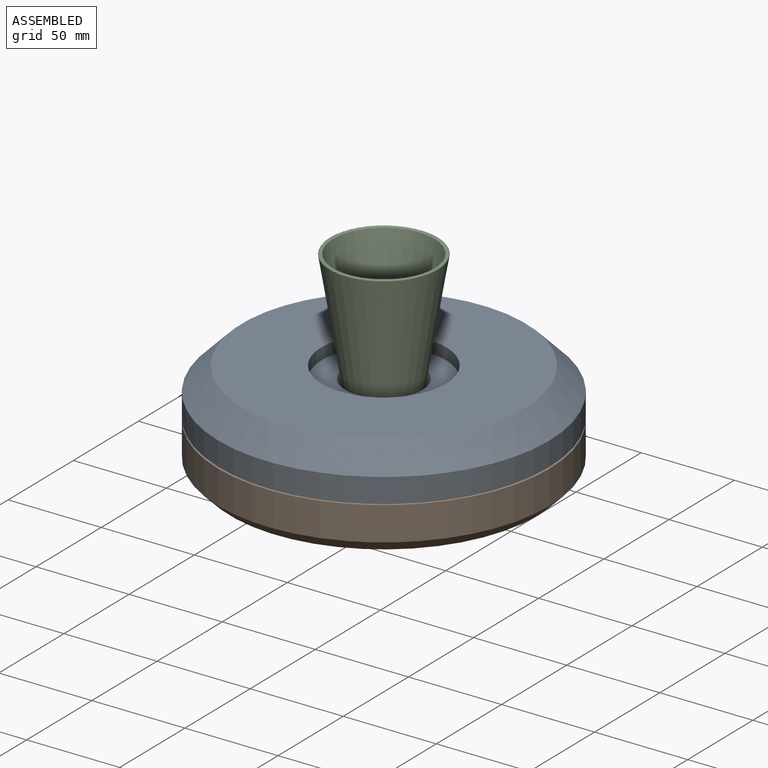
[diagram: assembled view]
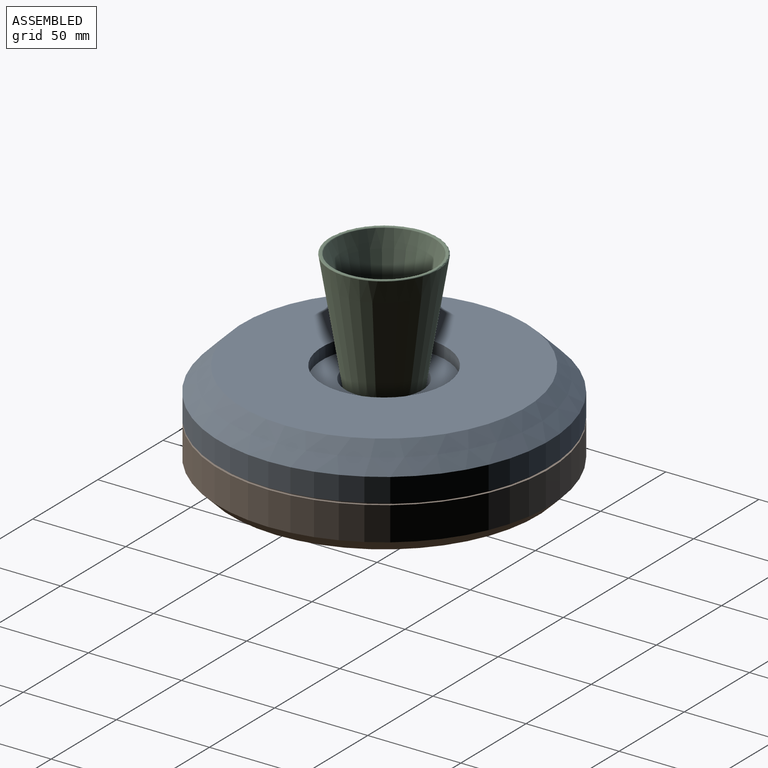
[diagram: assembled view, second angle]
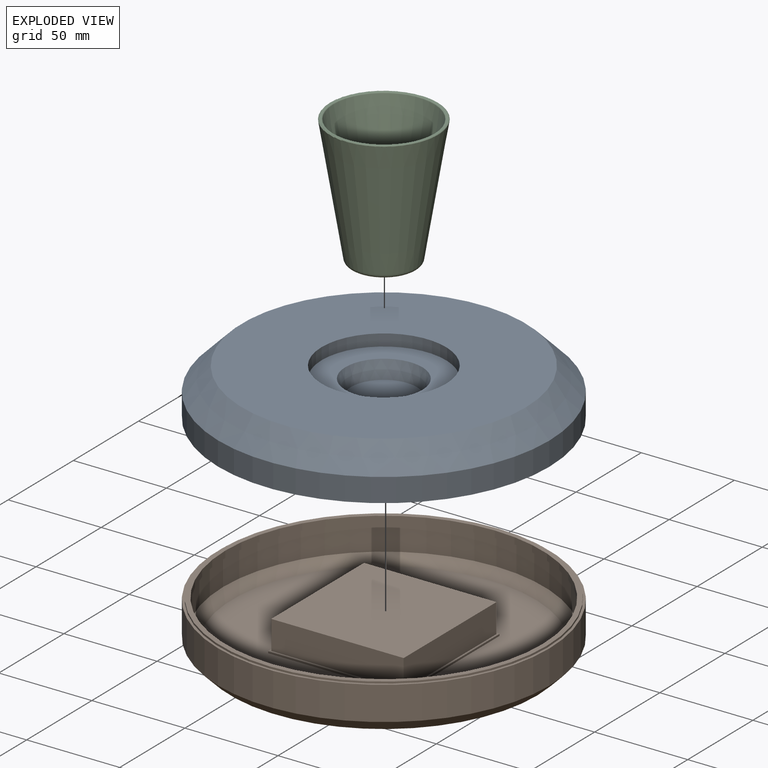
[diagram: exploded view]
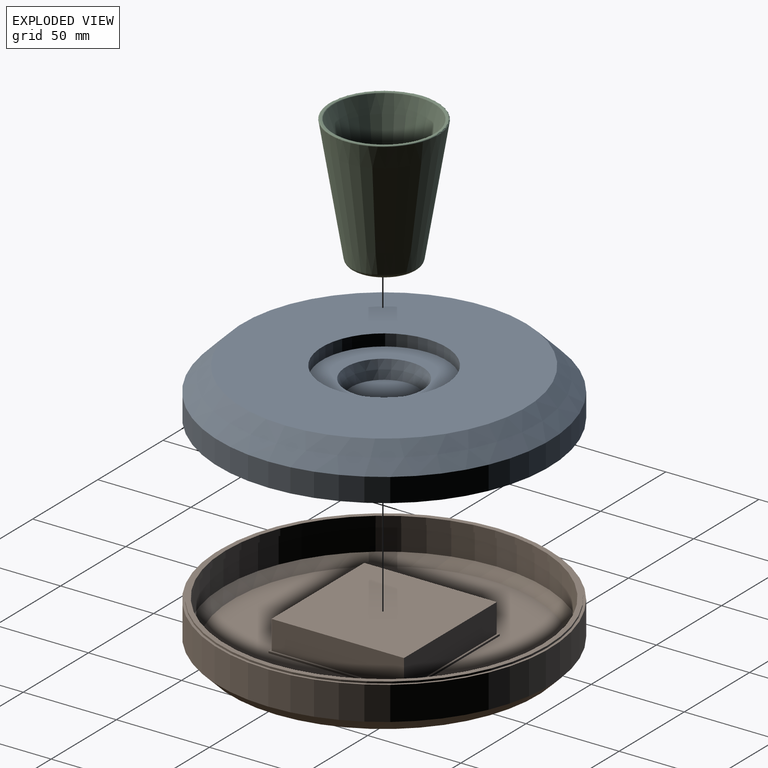
[diagram: exploded view, second angle]
ASSEMBLY  parts=3 mates=2
PART A: 15 faces, bbox 177.8x177.8x25.4 mm
  f0: cylinder r=88.9mm len=177.8mm, axis (0,0,-1), area 7093.9mm2, adj f2,f3
  f1: plane 152.4x152.4mm, normal (0,0,1), area 14736.6mm2, adj f3,f4
  f2: plane 177.8x177.8mm, normal (0,0,-1), area 1398.5mm2, adj f0,f8
  f3: cone r=76.2mm half-angle=45deg, axis (0,0,-1), area 9315.7mm2, adj f0,f1
  f4: cylinder r=33.4mm len=66.8mm, axis (0,0,1), area 1332.6mm2, adj f1,f5
  f5: plane 66.8x66.8mm, normal (0,0,1), area 2162.5mm2, adj f4,f7
  f6: plane 35.56x35.56mm, normal (0,0,1), area 993.4mm2, adj f7
  f7: cone r=17.78mm half-angle=18deg, axis (0,0,1), area 1129.2mm2, adj f5,f6
  f8: cylinder r=86.36mm len=172.72mm, axis (0,0,-1), area 6320.3mm2, adj f2,f10
  f9: plane 150.3x150.3mm, normal (0,0,-1), area 13683.1mm2, adj f10,f11
  f10: cone r=74.4mm half-angle=45deg, axis (0,0,-1), area 8045.4mm2, adj f8,f9
  f11: cylinder r=35.94mm len=71.88mm, axis (0,0,1), area 1434mm2, adj f9,f12
  f12: plane 71.88x71.88mm, normal (0,0,-1), area 2465.5mm2, adj f11,f14
  f13: plane 39.26x39.26mm, normal (0,0,-1), area 1210.3mm2, adj f14
  f14: cone r=20.2mm half-angle=18deg, axis (0,0,1), area 1237.6mm2, adj f12,f13
PART B: 31 faces, bbox 177.8x177.8x25.4 mm
  f0: cylinder r=88.9mm len=177.8mm, axis (0,0,-1), area 10082.3mm2, adj f2,f14
  f1: plane 165.1x165.1mm, normal (0,0,-1), area 16784.4mm2, adj f2,f3,f4,f5,f6
  f2: cone r=88.9mm half-angle=45deg, axis (0,0,1), area 4837mm2, adj f0,f1
  f3: plane 68x1mm, normal (0,1,0), area 68mm2, adj f1,f4,f6,f7
  f4: plane 68x1mm, normal (-1,0,0), area 68mm2, adj f1,f3,f5,f7
  f5: plane 68x1mm, normal (0,-1,0), area 68mm2, adj f1,f4,f6,f7
  f6: plane 68x1mm, normal (1,0,0), area 68mm2, adj f1,f3,f5,f7
  f7: plane 68x68mm, normal (0,0,-1), area 268mm2, adj f3,f4,f5,f6,f8,f9,f10,f11
  f8: plane 66x15.51mm, normal (0,-1,0), area 1023.7mm2, adj f7,f9,f11,f12
  f9: plane 66x15.51mm, normal (1,0,0), area 1023.7mm2, adj f7,f8,f10,f12
  f10: plane 66x15.51mm, normal (0,1,0), area 1023.7mm2, adj f7,f9,f11,f12
  f11: plane 66x15.51mm, normal (-1,0,0), area 1023.7mm2, adj f7,f8,f10,f12
  f12: plane 66x66mm, normal (0,0,-1), area 4356mm2, adj f8,f9,f10,f11
  f13: cylinder r=87.63mm len=175.26mm, axis (0,0,1), area 550.6mm2, adj f14,f15
  f14: plane 177.8x177.8mm, normal (0,0,1), area 704.3mm2, adj f0,f13
  f15: plane 175.26x175.26mm, normal (0,0,1), area 1378.2mm2, adj f13,f29
  f16: cylinder r=86.36mm len=172.72mm, axis (0,0,-1), area 7845.1mm2, adj f18,f30
  f17: plane 163x163mm, normal (0,0,1), area 15525.5mm2, adj f18,f19,f20,f21,f22
  f18: cone r=87.1mm half-angle=45deg, axis (0,0,1), area 3626mm2, adj f16,f17
  f19: plane 73.08x1mm, normal (0,-1,0), area 73.1mm2, adj f17,f20,f22,f23
  f20: plane 73.08x1mm, normal (1,0,0), area 73.1mm2, adj f17,f19,f21,f23
  f21: plane 73.08x1mm, normal (0,1,0), area 73.1mm2, adj f17,f20,f22,f23
  f22: plane 73.08x1mm, normal (-1,0,0), area 73.1mm2, adj f17,f19,f21,f23
  f23: plane 73.08x73.08mm, normal (0,0,1), area 288.3mm2, adj f19,f20,f21,f22,f24,f25,f26,f27
  f24: plane 71.08x15.51mm, normal (0,1,0), area 1102.5mm2, adj f23,f25,f27,f28
  f25: plane 71.08x15.51mm, normal (-1,0,0), area 1102.5mm2, adj f23,f24,f26,f28
  f26: plane 71.08x15.51mm, normal (0,-1,0), area 1102.5mm2, adj f23,f25,f27,f28
  f27: plane 71.08x15.51mm, normal (1,0,0), area 1102.5mm2, adj f23,f24,f26,f28
  f28: plane 71.08x71.08mm, normal (0,0,1), area 5052.4mm2, adj f24,f25,f26,f27
  f29: cylinder r=85.09mm len=170.18mm, axis (0,0,1), area 1892.6mm2, adj f15,f30
  f30: plane 172.72x172.72mm, normal (0,0,-1), area 684.1mm2, adj f16,f29
PART C: 9 faces, bbox 62.7x62.7x69.9 mm
  f0: cone r=28.98mm half-angle=9.4deg, axis (0,0,1), area 10021.3mm2, adj f1,f8
  f1: torus R=15.35mm, axis (0,0,-1), area 378.4mm2, adj f0,f2
  f2: plane 30.69x30.69mm, normal (0,0,-1), area 739.8mm2, adj f1
  f3: plane 13.66x13.66mm, normal (0,0,1), area 146.6mm2, adj f4
  f4: torus R=6.83mm, axis (0,0,-1), area 716.8mm2, adj f3,f5
  f5: cone r=14.24mm half-angle=13.4deg, axis (0,0,1), area 7173.7mm2, adj f4,f6
  f6: torus R=27.51mm, axis (0,0,-1), area 102.6mm2, adj f5,f7
  f7: cone r=27.44mm half-angle=82.2deg, axis (0,0,1), area 171.8mm2, adj f6,f8
  f8: torus R=28.48mm, axis (0,0,-1), area 169.3mm2, adj f0,f7
PLACE A t=(79.96,-40.22,17.2)mm
PLACE B t=(264.11,-40.22,-8.2)mm
PLACE C t=(79.96,-40.22,27.36)mm
MATE fastened B.f13 <-> A.f0  axis (0,0,1) through (79.96,-40.22,17.2)mm
MATE fastened C.f0 <-> A.f7  axis (0,0,-1) through (79.96,-40.22,27.36)mm
